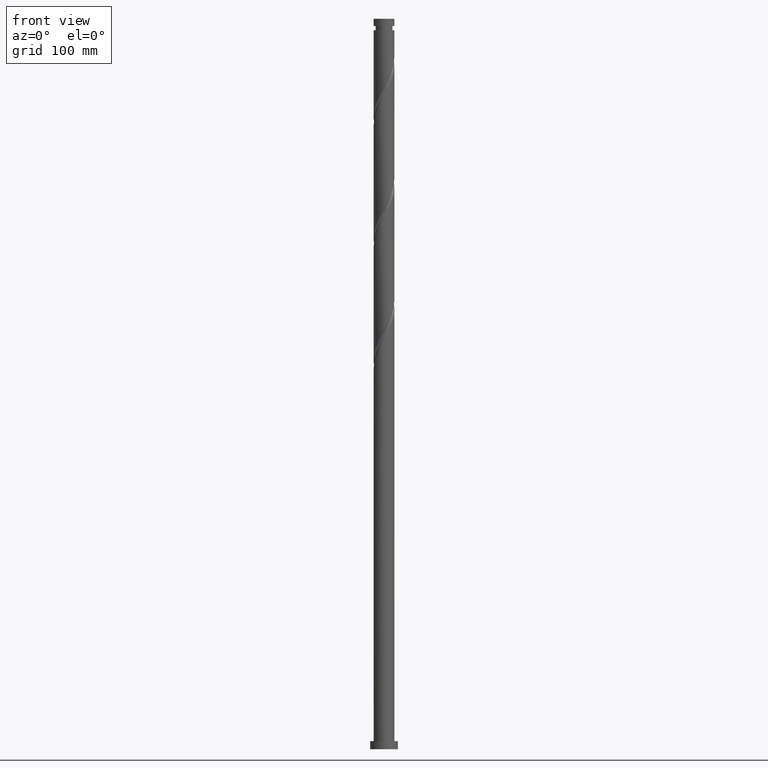
[diagram: clean part render]
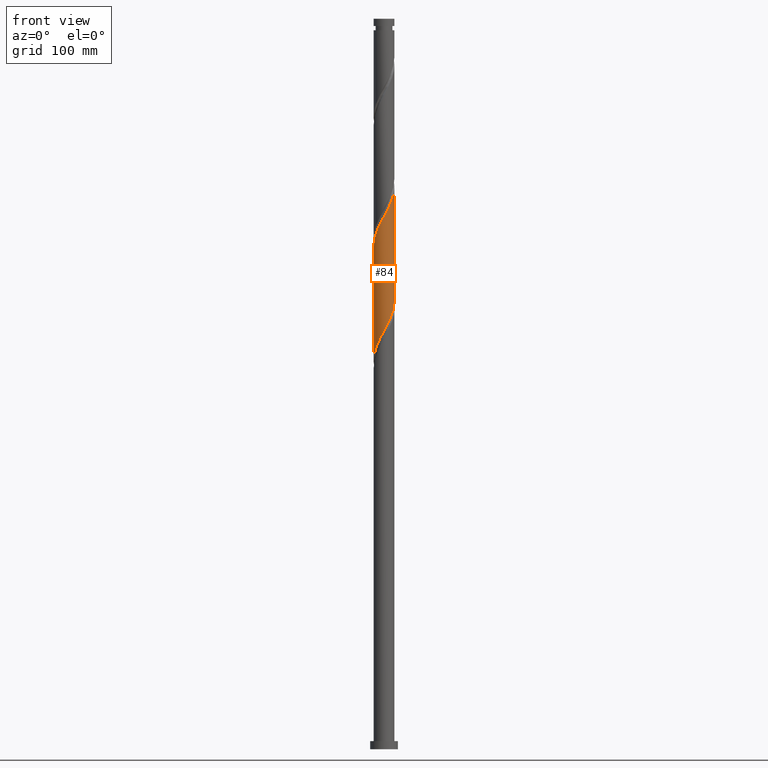
[diagram: same view with one face highlighted and labeled with its STEP entity id]
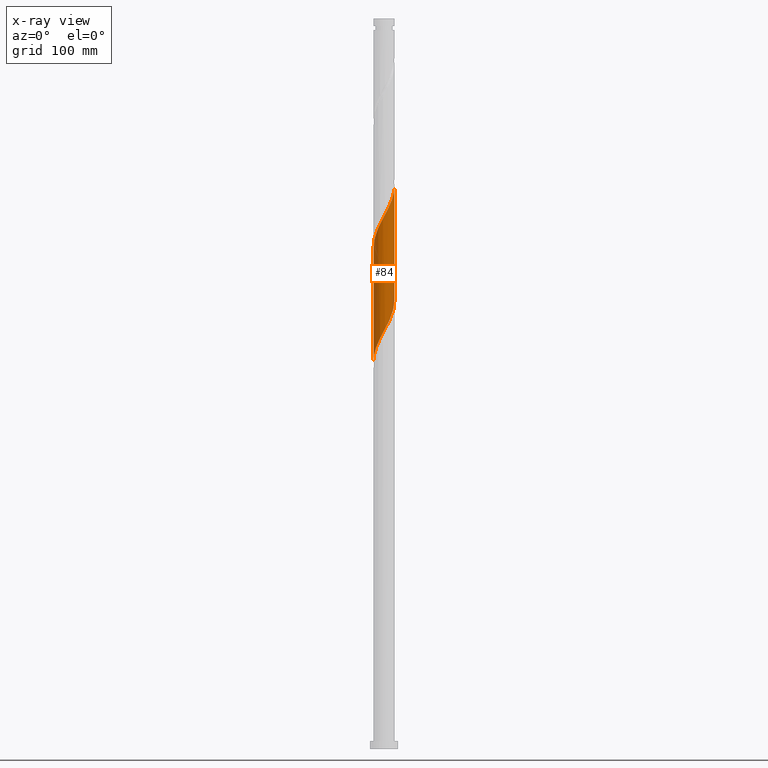
[diagram: x-ray of the same camera — body ghosted, the highlighted face saturated]
A machine part, front view. The second image highlights one B-rep face of the part: STEP entity #84.
The next image is the same camera in x-ray: the body ghosted, the highlighted face saturated — about 0% of this face is hidden behind the body in this view.
In plain terms, the highlighted cylindrical surface (edge-blend (fillet) strip) has radius 9 mm, axis along (-0, -0, -1).
Its self-contained STEP definition (entity closure, byte-faithful):
#35 = CARTESIAN_POINT ( 'NONE',  ( 7.265543836342427397, -5.311484986535008446, 475.0223796098240427 ) ) ;
#84 = ADVANCED_FACE ( 'NONE', ( #549 ), #223, .T. ) ;
#100 = CARTESIAN_POINT ( 'NONE',  ( 8.617124889607046256, -2.597144323466612725, 382.3753207862946510 ) ) ;
#140 = CARTESIAN_POINT ( 'NONE',  ( 0.000000000000000000, 0.000000000000000000, 630.0000000000000000 ) ) ;
#165 = DIRECTION ( 'NONE',  ( -0.000000000000000000, -0.000000000000000000, -1.000000000000000000 ) ) ;
#167 = CARTESIAN_POINT ( 'NONE',  ( 9.000000000000001776, 1.102182119232617911E-15, 630.0000000000000000 ) ) ;
#171 = CARTESIAN_POINT ( 'NONE',  ( -4.618447317582857536, -7.724632313237436598, 450.3164972568828830 ) ) ;
#212 =( BOUNDED_CURVE ( )  B_SPLINE_CURVE ( 2, ( #1982, #1861, #999, #1339, #463, #1672, #830, #857, #844, #1509, #1851, #1010, #171, #2034, #1521, #345, #1695, #1535, #295, #878, #1557, #1547, #1402, #711, #1225, #395, #2086, #544, #35, #563, #1075, #1035, #1903, #2078, #1214, #1748, #2067 ),
 .UNSPECIFIED., .F., .T. ) 
 B_SPLINE_CURVE_WITH_KNOTS ( ( 3, 2, 2, 2, 2, 2, 2, 2, 2, 2, 2, 2, 2, 2, 2, 2, 2, 2, 3 ),
 ( 0.3045293573162904388, 0.3088235294117647189, 0.3161764705882352811, 0.3235294117647058432, 0.3308823529411765163, 0.3382352941176470784, 0.3455882352941176405, 0.3529411764705882026, 0.3602941176470588758, 0.3676470588235294379, 0.3750000000000000000, 0.3823529411764705621, 0.3897058823529411242, 0.3970588235294117974, 0.4044117647058823595, 0.4117647058823529216, 0.4191176470588234837, 0.4264705882352941568, 0.4295293573162905498 ),
 .UNSPECIFIED. ) 
 CURVE ( )  GEOMETRIC_REPRESENTATION_ITEM ( )  RATIONAL_B_SPLINE_CURVE ( ( 0.9072066346053047070, 0.9068261157890716850, 0.9090909090909431445, 0.9052128875409741759, 0.9090909090909431445, 0.9052128875409741759, 0.9090909090909431445, 0.9052128875409741759, 0.9090909090909431445, 0.9052128875409741759, 0.9090909090909431445, 0.9052128875409741759, 0.9090909090909431445, 0.9052128875409741759, 0.9090909090909431445, 0.9052128875409741759, 0.9090909090909431445, 0.9052128875409741759, 0.9090909090909431445, 0.9052128875409741759, 0.9090909090909431445, 0.9052128875409741759, 0.9090909090909431445, 0.9052128875409741759, 0.9090909090909431445, 0.9052128875409741759, 0.9090909090909431445, 0.9052128875409741759, 0.9090909090909431445, 0.9052128875409741759, 0.9090909090909431445, 0.9052128875409741759, 0.9090909090909431445, 0.9052128875409741759, 0.9090909090909431445, 0.9074776808428454133, 0.9072066346053047070 ) ) 
 REPRESENTATION_ITEM ( '' )  );
#223 = CYLINDRICAL_SURFACE ( 'NONE', #893, 9.000000000000001776 ) ;
#295 = CARTESIAN_POINT ( 'NONE',  ( 0.1398118462164794629, -8.998913970455422628, 459.5812031392358108 ) ) ;
#301 = CARTESIAN_POINT ( 'NONE',  ( 5.959206938358891037, -6.744468301194342708, 373.1106149039418369 ) ) ;
#326 = CARTESIAN_POINT ( 'NONE',  ( -5.558340410535744347, -7.127437305141985924, 349.9488501980594037 ) ) ;
#335 = EDGE_CURVE ( 'NONE', #1166, #1022, #1031, .T. ) ;
#339 = CARTESIAN_POINT ( 'NONE',  ( -4.856188172445342843, -7.577429408038192982, 351.4929678451181871 ) ) ;
#345 = CARTESIAN_POINT ( 'NONE',  ( -2.338169303687822609, -8.730891991395644425, 454.9488501980593469 ) ) ;
#395 = CARTESIAN_POINT ( 'NONE',  ( 5.558340410535752341, -7.127437305142000135, 470.3900266686476357 ) ) ;
#463 = CARTESIAN_POINT ( 'NONE',  ( -8.617124889607055138, -2.597144323466614502, 437.9635560804122747 ) ) ;
#470 = CARTESIAN_POINT ( 'NONE',  ( 7.993177945963301667, -4.136315549394891100, 379.2870854921770274 ) ) ;
#494 = CARTESIAN_POINT ( 'NONE',  ( 9.000000000000005329, -0.4861798531133721402, 386.3637279760347951 ) ) ;
#501 = VECTOR ( 'NONE', #994, 1000.000000000000000 ) ;
#519 = CARTESIAN_POINT ( 'NONE',  ( -9.000000000000007105, -1.873318426634333512E-14, 334.7676472080476060 ) ) ;
#530 = CARTESIAN_POINT ( 'NONE',  ( -8.973426399605228809, -0.6910995954766550042, 336.0517913745300120 ) ) ;
#544 = CARTESIAN_POINT ( 'NONE',  ( 6.773362270530297380, -5.984736770341805290, 473.4782619627653162 ) ) ;
#549 = FACE_OUTER_BOUND ( 'NONE', #675, .T. ) ;
#563 = CARTESIAN_POINT ( 'NONE',  ( 7.757725402154564520, -4.638233202728213378, 476.5664972568829967 ) ) ;
#611 = CARTESIAN_POINT ( 'NONE',  ( 1.516114819096038735, -8.871380718654645392, 363.8459090215888523 ) ) ;
#645 =( BOUNDED_CURVE ( )  B_SPLINE_CURVE ( 2, ( #664, #494, #650, #778, #100, #1653, #470, #1146, #1819, #1832, #301, #791, #812, #1449, #1484, #1319, #611, #990, #1208, #1016, #2184, #2026, #1550, #1343, #339, #326, #881, #1525, #1875, #1227, #1187, #2039, #2070, #2060, #530, #2050, #519 ),
 .UNSPECIFIED., .F., .T. ) 
 B_SPLINE_CURVE_WITH_KNOTS ( ( 3, 2, 2, 2, 2, 2, 2, 2, 2, 2, 2, 2, 2, 2, 2, 2, 2, 2, 3 ),
 ( 0.8045293573162903833, 0.8088235294117647189, 0.8161764705882352811, 0.8235294117647058432, 0.8308823529411765163, 0.8382352941176470784, 0.8455882352941176405, 0.8529411764705882026, 0.8602941176470588758, 0.8676470588235294379, 0.8750000000000000000, 0.8823529411764705621, 0.8897058823529411242, 0.8970588235294117974, 0.9044117647058823595, 0.9117647058823529216, 0.9191176470588234837, 0.9264705882352941568, 0.9295293573162904943 ),
 .UNSPECIFIED. ) 
 CURVE ( )  GEOMETRIC_REPRESENTATION_ITEM ( )  RATIONAL_B_SPLINE_CURVE ( ( 0.9072066346052993779, 0.9068261157890664670, 0.9090909090909375934, 0.9052128875409690689, 0.9090909090909375934, 0.9052128875409690689, 0.9090909090909375934, 0.9052128875409690689, 0.9090909090909375934, 0.9052128875409690689, 0.9090909090909375934, 0.9052128875409690689, 0.9090909090909375934, 0.9052128875409690689, 0.9090909090909375934, 0.9052128875409690689, 0.9090909090909375934, 0.9052128875409690689, 0.9090909090909375934, 0.9052128875409690689, 0.9090909090909375934, 0.9052128875409690689, 0.9090909090909375934, 0.9052128875409690689, 0.9090909090909375934, 0.9052128875409690689, 0.9090909090909375934, 0.9052128875409690689, 0.9090909090909375934, 0.9052128875409690689, 0.9090909090909375934, 0.9052128875409690689, 0.9090909090909375934, 0.9052128875409690689, 0.9090909090909375934, 0.9074776808428401953, 0.9072066346052993779 ) ) 
 REPRESENTATION_ITEM ( '' )  );
#650 = CARTESIAN_POINT ( 'NONE',  ( 8.947625980237367216, -0.9695304625339699056, 385.4635560804123315 ) ) ;
#664 = CARTESIAN_POINT ( 'NONE',  ( 9.000000000000003553, -6.782189519074858597E-15, 387.2676472080476060 ) ) ;
#675 = EDGE_LOOP ( 'NONE', ( #1811, #1867, #1327, #1430 ) ) ;
#678 = CARTESIAN_POINT ( 'NONE',  ( -9.000000000000014211, -5.646845018084320665E-15, 433.0712296586595471 ) ) ;
#711 = CARTESIAN_POINT ( 'NONE',  ( 4.154035934354943116, -8.027421510934408033, 467.3017913745300120 ) ) ;
#778 = CARTESIAN_POINT ( 'NONE',  ( 8.857785752436246440, -1.798650111072677582, 383.9194384333535481 ) ) ;
#791 = CARTESIAN_POINT ( 'NONE',  ( 5.334239913606436012, -7.296670144813479197, 371.5664972568828830 ) ) ;
#812 = CARTESIAN_POINT ( 'NONE',  ( 4.618447317582850431, -7.724632313237429493, 370.0223796098240996 ) ) ;
#830 = CARTESIAN_POINT ( 'NONE',  ( -7.993177945963313213, -4.136315549394891988, 441.0517913745300689 ) ) ;
#838 = VERTEX_POINT ( 'NONE', #678 ) ;
#844 = CARTESIAN_POINT ( 'NONE',  ( -7.097032914130067205, -5.534629510252219831, 444.1400266686475220 ) ) ;
#857 = CARTESIAN_POINT ( 'NONE',  ( -7.609891865148779466, -4.876992562929230779, 442.5959090215889091 ) ) ;
#860 = CARTESIAN_POINT ( 'NONE',  ( -9.000000000000007105, -1.873318426634333512E-14, 334.7676472080476628 ) ) ;
#878 = CARTESIAN_POINT ( 'NONE',  ( 0.9736840269372226686, -8.985958494997177581, 461.1253207862948216 ) ) ;
#881 = CARTESIAN_POINT ( 'NONE',  ( -6.165851340533016867, -6.556087037741892054, 348.4047325510006203 ) ) ;
#893 = AXIS2_PLACEMENT_3D ( 'NONE', #140, #1491, #1887 ) ;
#990 = CARTESIAN_POINT ( 'NONE',  ( 0.6940603345042588579, -9.011869445913658794, 362.3017913745300120 ) ) ;
#994 = DIRECTION ( 'NONE',  ( -0.000000000000000000, -0.000000000000000000, -1.000000000000000000 ) ) ;
#999 = CARTESIAN_POINT ( 'NONE',  ( -8.947625980237377874, -0.9695304625339655757, 434.8753207862946510 ) ) ;
#1004 = LINE ( 'NONE', #1884, #1804 ) ;
#1010 = CARTESIAN_POINT ( 'NONE',  ( -5.334239913606445782, -7.296670144813488967, 448.7723796098242133 ) ) ;
#1016 = CARTESIAN_POINT ( 'NONE',  ( -0.9736840269372201151, -8.985958494997161594, 359.2135560804122747 ) ) ;
#1022 = VERTEX_POINT ( 'NONE', #1621 ) ;
#1031 = LINE ( 'NONE', #167, #501 ) ;
#1035 = CARTESIAN_POINT ( 'NONE',  ( 8.477908499574528634, -3.133780166343287821, 479.6547325510006203 ) ) ;
#1075 = CARTESIAN_POINT ( 'NONE',  ( 8.117816950864543912, -3.886006684535749489, 478.1106149039416096 ) ) ;
#1079 = VERTEX_POINT ( 'NONE', #860 ) ;
#1146 = CARTESIAN_POINT ( 'NONE',  ( 7.609891865148766144, -4.876992562929225450, 377.7429678451181303 ) ) ;
#1166 = VERTEX_POINT ( 'NONE', #1357 ) ;
#1187 = CARTESIAN_POINT ( 'NONE',  ( -8.117816950864535031, -3.886006684535740163, 342.2282619627653730 ) ) ;
#1208 = CARTESIAN_POINT ( 'NONE',  ( -0.1398118462164825715, -8.998913970455413747, 360.7576737274711718 ) ) ;
#1214 = CARTESIAN_POINT ( 'NONE',  ( 8.973426399605243020, -0.6910995954766591121, 484.2870854921770274 ) ) ;
#1225 = CARTESIAN_POINT ( 'NONE',  ( 4.856188172445347284, -7.577429408038199199, 468.8459090215887386 ) ) ;
#1227 = CARTESIAN_POINT ( 'NONE',  ( -7.757725402154549421, -4.638233202728205384, 343.7723796098239859 ) ) ;
#1319 = CARTESIAN_POINT ( 'NONE',  ( 2.338169303687814171, -8.730891991395633767, 365.3900266686475788 ) ) ;
#1327 = ORIENTED_EDGE ( 'NONE', *, *, #1862, .T. ) ;
#1339 = CARTESIAN_POINT ( 'NONE',  ( -8.857785752436262428, -1.798650111072677582, 436.4194384333535481 ) ) ;
#1343 = CARTESIAN_POINT ( 'NONE',  ( -4.154035934354939563, -8.027421510934395599, 353.0370854921769137 ) ) ;
#1357 = CARTESIAN_POINT ( 'NONE',  ( 9.000000000000015987, 6.184639781711398523E-15, 485.5712296586593766 ) ) ;
#1402 = CARTESIAN_POINT ( 'NONE',  ( 3.381153340500782978, -8.340731507968627056, 465.7576737274711149 ) ) ;
#1430 = ORIENTED_EDGE ( 'NONE', *, *, #1821, .F. ) ;
#1449 = CARTESIAN_POINT ( 'NONE',  ( 3.902654721559262629, -8.152594481661374459, 368.4782619627652025 ) ) ;
#1484 = CARTESIAN_POINT ( 'NONE',  ( 3.120412012623539955, -8.441743236528505889, 366.9341443157064759 ) ) ;
#1491 = DIRECTION ( 'NONE',  ( -0.000000000000000000, -0.000000000000000000, -1.000000000000000000 ) ) ;
#1509 = CARTESIAN_POINT ( 'NONE',  ( -6.584173963111356720, -6.192266457575213323, 445.6841443157065328 ) ) ;
#1521 = CARTESIAN_POINT ( 'NONE',  ( -3.120412012623544395, -8.441743236528516547, 453.4047325510005635 ) ) ;
#1525 = CARTESIAN_POINT ( 'NONE',  ( -6.773362270530288498, -5.984736770341791967, 346.8606149039416096 ) ) ;
#1535 = CARTESIAN_POINT ( 'NONE',  ( -0.6940603345042627437, -9.011869445913680110, 458.0370854921770842 ) ) ;
#1547 = CARTESIAN_POINT ( 'NONE',  ( 2.608270746646629501, -8.654041505002851409, 464.2135560804123884 ) ) ;
#1550 = CARTESIAN_POINT ( 'NONE',  ( -3.381153340500782090, -8.340731507968618175, 354.5812031392359245 ) ) ;
#1557 = CARTESIAN_POINT ( 'NONE',  ( 1.790977386791923642, -8.820000000000012719, 462.6694384333535481 ) ) ;
#1621 = CARTESIAN_POINT ( 'NONE',  ( 9.000000000000003553, -6.782189519074858597E-15, 387.2676472080476060 ) ) ;
#1653 = CARTESIAN_POINT ( 'NONE',  ( 8.376464026777838967, -3.395638535860547425, 380.8312031392358676 ) ) ;
#1672 = CARTESIAN_POINT ( 'NONE',  ( -8.376464026777849625, -3.395638535860555418, 439.5076737274711718 ) ) ;
#1695 = CARTESIAN_POINT ( 'NONE',  ( -1.516114819096040067, -8.871380718654656050, 456.4929678451181303 ) ) ;
#1748 = CARTESIAN_POINT ( 'NONE',  ( 9.000000000000017764, -0.3460606909891353333, 484.9278239065997127 ) ) ;
#1804 = VECTOR ( 'NONE', #165, 1000.000000000000000 ) ;
#1811 = ORIENTED_EDGE ( 'NONE', *, *, #335, .F. ) ;
#1819 = CARTESIAN_POINT ( 'NONE',  ( 7.097032914130057435, -5.534629510252212725, 376.1988501980594606 ) ) ;
#1821 = EDGE_CURVE ( 'NONE', #1022, #1079, #645, .T. ) ;
#1832 = CARTESIAN_POINT ( 'NONE',  ( 6.584173963111345174, -6.192266457575206218, 374.6547325510005066 ) ) ;
#1851 = CARTESIAN_POINT ( 'NONE',  ( -5.959206938358899919, -6.744468301194349813, 447.2282619627652025 ) ) ;
#1861 = CARTESIAN_POINT ( 'NONE',  ( -9.000000000000015987, -0.4861798531133771362, 433.9751488906721875 ) ) ;
#1862 = EDGE_CURVE ( 'NONE', #838, #1079, #1004, .T. ) ;
#1867 = ORIENTED_EDGE ( 'NONE', *, *, #2072, .F. ) ;
#1875 = CARTESIAN_POINT ( 'NONE',  ( -7.265543836342422068, -5.311484986534998676, 345.3164972568828830 ) ) ;
#1884 = CARTESIAN_POINT ( 'NONE',  ( -9.000000000000001776, 0.000000000000000000, 630.0000000000000000 ) ) ;
#1887 = DIRECTION ( 'NONE',  ( -1.000000000000000000, 0.000000000000000000, 0.000000000000000000 ) ) ;
#1903 = CARTESIAN_POINT ( 'NONE',  ( 8.693647545373256236, -2.328195085645923257, 481.1988501980593469 ) ) ;
#1982 = CARTESIAN_POINT ( 'NONE',  ( -9.000000000000014211, -5.646845018084320665E-15, 433.0712296586595471 ) ) ;
#2026 = CARTESIAN_POINT ( 'NONE',  ( -2.608270746646625504, -8.654041505002840751, 356.1253207862946510 ) ) ;
#2034 = CARTESIAN_POINT ( 'NONE',  ( -3.902654721559273288, -8.152594481661386894, 451.8606149039417801 ) ) ;
#2039 = CARTESIAN_POINT ( 'NONE',  ( -8.477908499574517975, -3.133780166343278939, 340.6841443157064191 ) ) ;
#2050 = CARTESIAN_POINT ( 'NONE',  ( -9.000000000000001776, -0.3460606909891402183, 335.4110529601072699 ) ) ;
#2060 = CARTESIAN_POINT ( 'NONE',  ( -8.909386591171969627, -1.522610004948563578, 337.5959090215888523 ) ) ;
#2067 = CARTESIAN_POINT ( 'NONE',  ( 9.000000000000017764, 6.184639781711398523E-15, 485.5712296586593766 ) ) ;
#2070 = CARTESIAN_POINT ( 'NONE',  ( -8.693647545373245578, -2.328195085645921036, 339.1400266686476357 ) ) ;
#2072 = EDGE_CURVE ( 'NONE', #838, #1166, #212, .T. ) ;
#2078 = CARTESIAN_POINT ( 'NONE',  ( 8.909386591171982062, -1.522610004948567797, 482.7429678451182440 ) ) ;
#2086 = CARTESIAN_POINT ( 'NONE',  ( 6.165851340533024860, -6.556087037741899159, 471.9341443157065328 ) ) ;
#2184 = CARTESIAN_POINT ( 'NONE',  ( -1.790977386791924753, -8.820000000000000284, 357.6694384333534913 ) ) ;